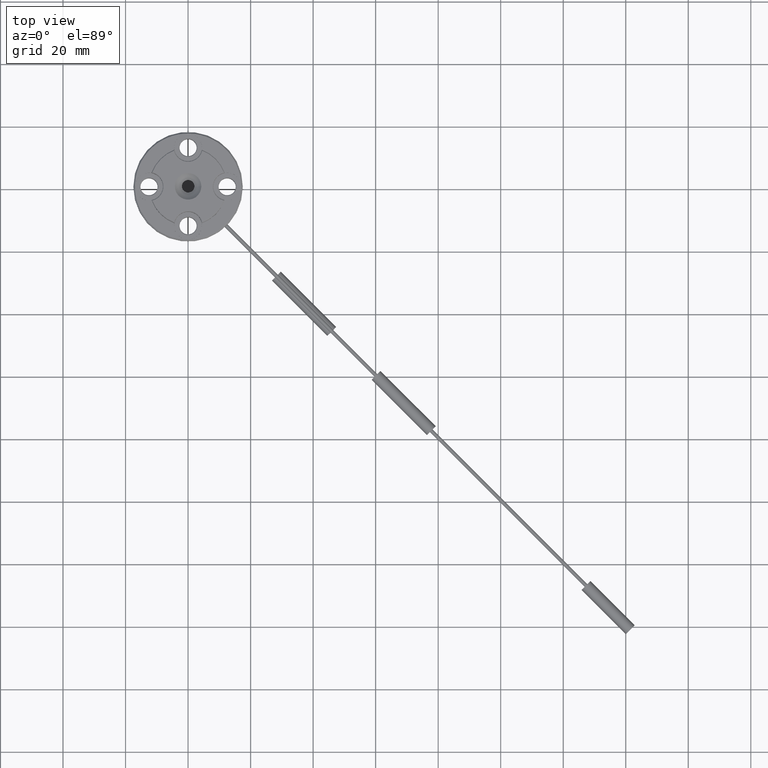
[diagram: clean part render]
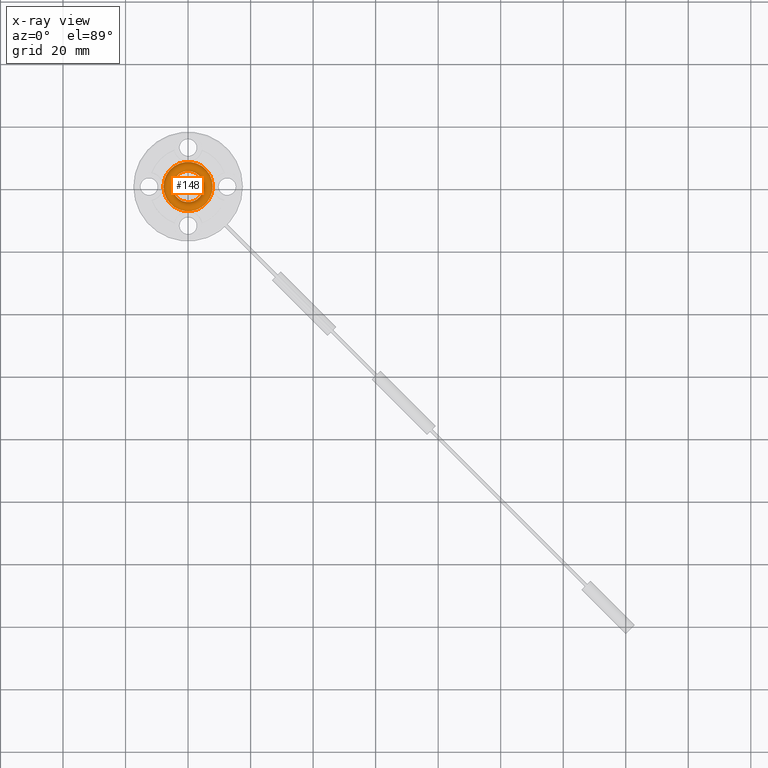
[diagram: x-ray — body ghosted, one internal face saturated and labeled with its STEP entity id]
A machine part, top view, then the same camera in x-ray: the body is ghosted and one INTERNAL B-rep face — a face not visible from any outside direction — is saturated and labeled: STEP entity #148.
In plain terms, the highlighted toroidal blend (fillet) surface has major radius 6.49 mm and minor (blend) radius 1.5 mm.
Its self-contained STEP definition (entity closure, byte-faithful):
#35=TOROIDAL_SURFACE('',#1092,6.49,1.5);
#148=ADVANCED_FACE('',(#368,#369),#35,.F.);
#255=CIRCLE('',#1084,7.88528433435883);
#258=CIRCLE('',#1090,4.99);
#368=FACE_BOUND('',#499,.T.);
#369=FACE_BOUND('',#500,.T.);
#499=EDGE_LOOP('',(#650));
#500=EDGE_LOOP('',(#651));
#650=ORIENTED_EDGE('',*,*,#946,.F.);
#651=ORIENTED_EDGE('',*,*,#949,.T.);
#853=VERTEX_POINT('',#1808);
#856=VERTEX_POINT('',#1817);
#946=EDGE_CURVE('',#853,#853,#255,.T.);
#949=EDGE_CURVE('',#856,#856,#258,.T.);
#1084=AXIS2_PLACEMENT_3D('',#1807,#1295,#1296);
#1090=AXIS2_PLACEMENT_3D('',#1816,#1307,#1308);
#1092=AXIS2_PLACEMENT_3D('',#1819,#1311,#1312);
#1295=DIRECTION('',(0.,0.,1.));
#1296=DIRECTION('',(-1.,0.,0.));
#1307=DIRECTION('',(0.,0.,1.));
#1308=DIRECTION('',(-1.,0.,0.));
#1311=DIRECTION('',(0.,0.,-1.));
#1312=DIRECTION('',(-1.,0.,0.));
#1807=CARTESIAN_POINT('',(0.,0.,-5.64938068841274));
#1808=CARTESIAN_POINT('',(-7.88528433435883,0.,-5.64938068841274));
#1816=CARTESIAN_POINT('',(0.,0.,-6.20000000000001));
#1817=CARTESIAN_POINT('',(-4.99,0.,-6.20000000000001));
#1819=CARTESIAN_POINT('',(0.,0.,-6.2));